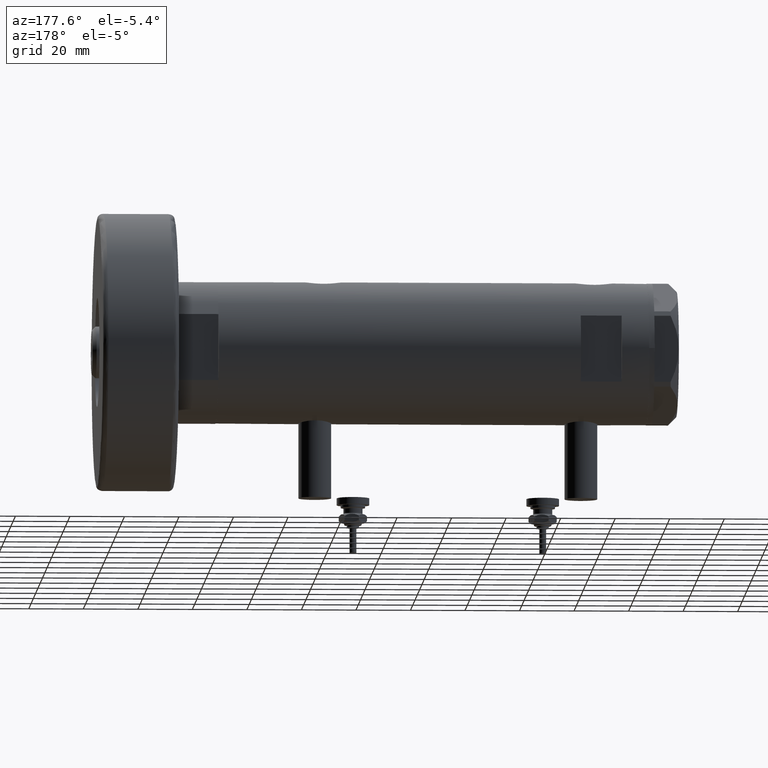
[diagram: clean part render]
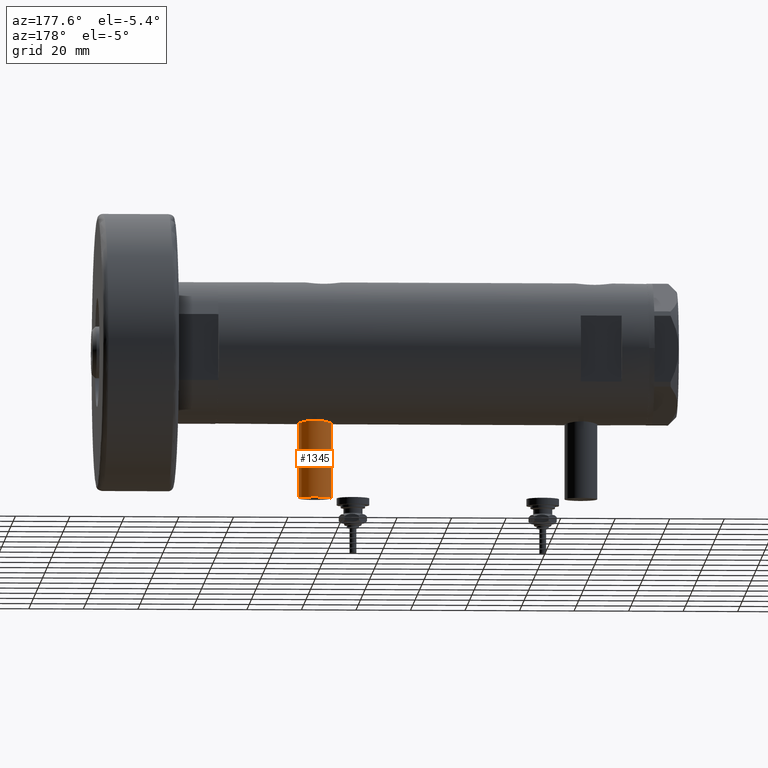
[diagram: same view with one face highlighted and labeled with its STEP entity id]
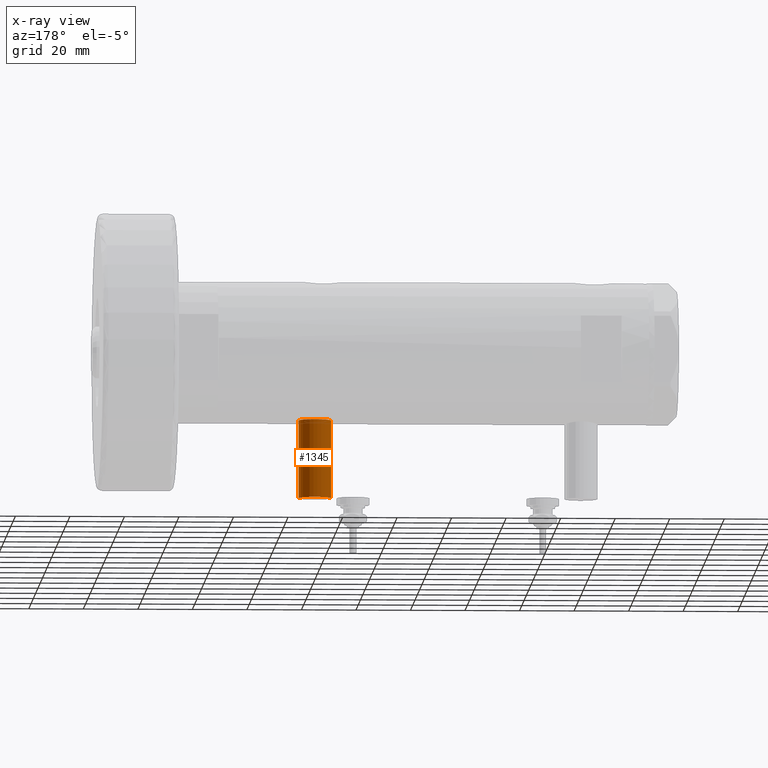
[diagram: x-ray of the same camera — body ghosted, the highlighted face saturated]
A machine part, auxiliary view. The second image highlights one B-rep face of the part: STEP entity #1345.
The next image is the same camera in x-ray: the body ghosted, the highlighted face saturated — about 0% of this face is hidden behind the body in this view.
In plain terms, the highlighted cylindrical surface (edge-blend (fillet) strip) has radius 6 mm, axis along (0, 0, 1).
Its self-contained STEP definition (entity closure, byte-faithful):
#136 = ORIENTED_EDGE ( 'NONE', *, *, #923, .F. ) ;
#155 = EDGE_CURVE ( 'NONE', #5052, #2603, #6234, .T. ) ;
#401 = EDGE_CURVE ( 'NONE', #630, #932, #1760, .T. ) ;
#443 = AXIS2_PLACEMENT_3D ( 'NONE', #6103, #954, #3530 ) ;
#630 = VERTEX_POINT ( 'NONE', #5152 ) ;
#766 = CARTESIAN_POINT ( 'NONE',  ( -53.40000000000000568, 0.000000000000000000, -48.65000000000001279 ) ) ;
#923 = EDGE_CURVE ( 'NONE', #5052, #630, #3060, .T. ) ;
#932 = VERTEX_POINT ( 'NONE', #3729 ) ;
#954 = DIRECTION ( 'NONE',  ( -1.000000000000000000, 0.000000000000000000, 0.000000000000000000 ) ) ;
#1212 = DIRECTION ( 'NONE',  ( 1.000000000000000000, -0.000000000000000000, -0.000000000000000000 ) ) ;
#1316 = CARTESIAN_POINT ( 'NONE',  ( -24.80000000000000426, 7.347880794884119736E-16, -36.64999999999999858 ) ) ;
#1339 = AXIS2_PLACEMENT_3D ( 'NONE', #1666, #1212, #5282 ) ;
#1345 = ADVANCED_FACE ( 'NONE', ( #4732 ), #3282, .T. ) ;
#1666 = CARTESIAN_POINT ( 'NONE',  ( -53.40000000000000568, 0.000000000000000000, -42.65000000000000568 ) ) ;
#1755 = VECTOR ( 'NONE', #2139, 1000.000000000000000 ) ;
#1760 = LINE ( 'NONE', #766, #2733 ) ;
#2139 = DIRECTION ( 'NONE',  ( 1.000000000000000000, -0.000000000000000000, -0.000000000000000000 ) ) ;
#2249 = CARTESIAN_POINT ( 'NONE',  ( -53.40000000000000568, 0.000000000000000000, -42.65000000000000568 ) ) ;
#2603 = VERTEX_POINT ( 'NONE', #1316 ) ;
#2733 = VECTOR ( 'NONE', #3815, 1000.000000000000000 ) ;
#2816 = DIRECTION ( 'NONE',  ( -1.000000000000000000, 0.000000000000000000, 0.000000000000000000 ) ) ;
#2926 = EDGE_CURVE ( 'NONE', #2603, #932, #5640, .T. ) ;
#3009 = CARTESIAN_POINT ( 'NONE',  ( -53.40000000000000568, 7.347880794884119736E-16, -36.64999999999999858 ) ) ;
#3060 = CIRCLE ( 'NONE', #3172, 6.000000000000005329 ) ;
#3172 = AXIS2_PLACEMENT_3D ( 'NONE', #2249, #2816, #4303 ) ;
#3282 = CYLINDRICAL_SURFACE ( 'NONE', #1339, 6.000000000000005329 ) ;
#3530 = DIRECTION ( 'NONE',  ( 0.000000000000000000, 0.000000000000000000, 1.000000000000000000 ) ) ;
#3608 = EDGE_LOOP ( 'NONE', ( #136, #5396, #4310, #5863 ) ) ;
#3681 = CARTESIAN_POINT ( 'NONE',  ( -53.40000000000000568, 7.347880794884122694E-16, -36.64999999999999858 ) ) ;
#3729 = CARTESIAN_POINT ( 'NONE',  ( -24.80000000000000426, 0.000000000000000000, -48.65000000000001279 ) ) ;
#3815 = DIRECTION ( 'NONE',  ( 1.000000000000000000, -0.000000000000000000, -0.000000000000000000 ) ) ;
#4303 = DIRECTION ( 'NONE',  ( 0.000000000000000000, 0.000000000000000000, 1.000000000000000000 ) ) ;
#4310 = ORIENTED_EDGE ( 'NONE', *, *, #2926, .T. ) ;
#4732 = FACE_OUTER_BOUND ( 'NONE', #3608, .T. ) ;
#5052 = VERTEX_POINT ( 'NONE', #3009 ) ;
#5152 = CARTESIAN_POINT ( 'NONE',  ( -53.40000000000000568, 0.000000000000000000, -48.65000000000001279 ) ) ;
#5282 = DIRECTION ( 'NONE',  ( 0.000000000000000000, 0.000000000000000000, -1.000000000000000000 ) ) ;
#5396 = ORIENTED_EDGE ( 'NONE', *, *, #155, .T. ) ;
#5640 = CIRCLE ( 'NONE', #443, 6.000000000000005329 ) ;
#5863 = ORIENTED_EDGE ( 'NONE', *, *, #401, .F. ) ;
#6103 = CARTESIAN_POINT ( 'NONE',  ( -24.80000000000000426, 0.000000000000000000, -42.65000000000000568 ) ) ;
#6234 = LINE ( 'NONE', #3681, #1755 ) ;